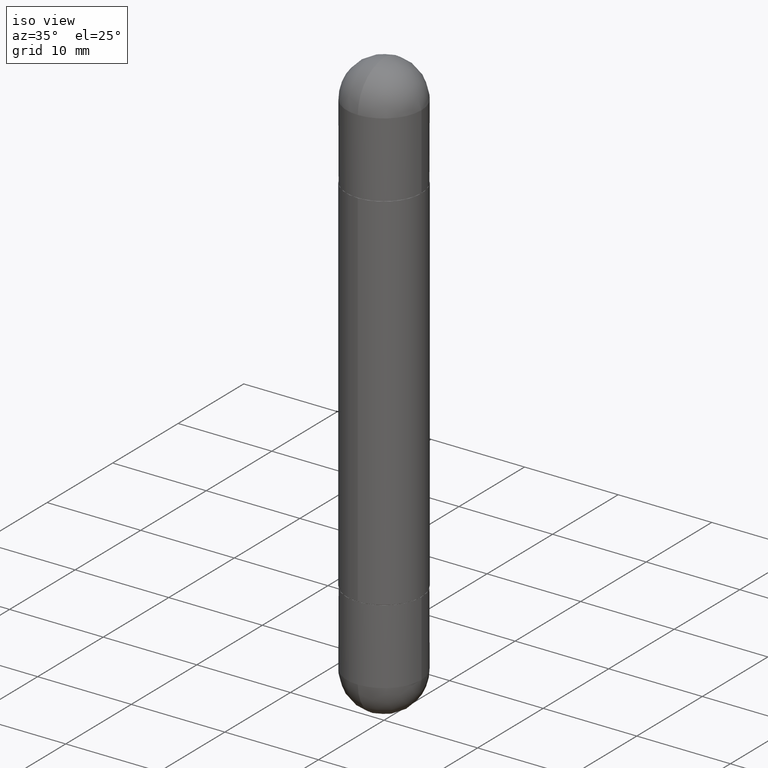
[diagram: clean part render]
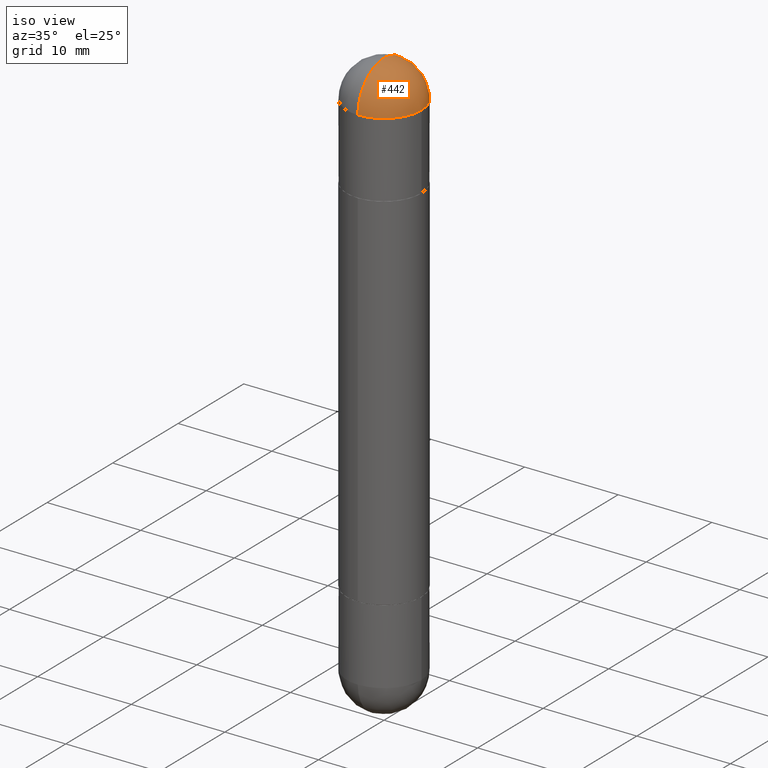
[diagram: same view with one face highlighted and labeled with its STEP entity id]
A machine part, iso view. The second image highlights one B-rep face of the part: STEP entity #442.
In plain terms, the highlighted spherical surface has radius 4.0005 mm.
Its self-contained STEP definition (entity closure, byte-faithful):
#32 = DIRECTION ( 'NONE',  ( -1.000000000000000000, 6.982962677686265922E-15, 4.883557194083112340E-29 ) ) ;
#51 = VERTEX_POINT ( 'NONE', #335 ) ;
#66 = ORIENTED_EDGE ( 'NONE', *, *, #529, .T. ) ;
#95 = EDGE_LOOP ( 'NONE', ( #498, #66, #574, #303 ) ) ;
#208 = AXIS2_PLACEMENT_3D ( 'NONE', #278, #473, #720 ) ;
#250 = CARTESIAN_POINT ( 'NONE',  ( 5.680334943006836279E-29, -8.110012853864858834E-15, -0.1575000000000001676 ) ) ;
#254 = DIRECTION ( 'NONE',  ( 2.445468806185136597E-29, -3.491481338843145583E-15, 1.000000000000000000 ) ) ;
#259 = AXIS2_PLACEMENT_3D ( 'NONE', #750, #755, #636 ) ;
#278 = CARTESIAN_POINT ( 'NONE',  ( 5.349215165092950032E-29, -8.584195222004910708E-15, -0.1574999999999998901 ) ) ;
#303 = ORIENTED_EDGE ( 'NONE', *, *, #673, .T. ) ;
#310 = CIRCLE ( 'NONE', #471, 0.1575000000000001676 ) ;
#335 = CARTESIAN_POINT ( 'NONE',  ( -1.080528434648961545E-15, -0.1575000000000084388, -0.1575000000000007228 ) ) ;
#349 = CARTESIAN_POINT ( 'NONE',  ( 5.349215165092950032E-29, -8.584195222004910708E-15, -0.1574999999999998901 ) ) ;
#362 = CARTESIAN_POINT ( 'NONE',  ( 5.349215165092950032E-29, -8.584195222004910708E-15, -0.1574999999999998901 ) ) ;
#398 = FACE_OUTER_BOUND ( 'NONE', #95, .T. ) ;
#405 = CARTESIAN_POINT ( 'NONE',  ( 0.1575000000000000011, -8.660095738799594725E-15, -0.1575000000000001676 ) ) ;
#407 = EDGE_CURVE ( 'NONE', #599, #651, #413, .T. ) ;
#413 = CIRCLE ( 'NONE', #533, 0.1575000000000001676 ) ;
#442 = ADVANCED_FACE ( 'NONE', ( #398 ), #532, .T. ) ;
#448 = VERTEX_POINT ( 'NONE', #405 ) ;
#471 = AXIS2_PLACEMENT_3D ( 'NONE', #362, #608, #740 ) ;
#473 = DIRECTION ( 'NONE',  ( 1.000000000000000000, -6.982962677686265133E-15, -4.883557194083112901E-29 ) ) ;
#498 = ORIENTED_EDGE ( 'NONE', *, *, #407, .F. ) ;
#529 = EDGE_CURVE ( 'NONE', #599, #51, #310, .T. ) ;
#532 = SPHERICAL_SURFACE ( 'NONE', #208, 0.1575000000000001676 ) ;
#533 = AXIS2_PLACEMENT_3D ( 'NONE', #349, #32, #781 ) ;
#566 = DIRECTION ( 'NONE',  ( 1.000000000000000000, -6.982962677686268288E-15, 0.000000000000000000 ) ) ;
#574 = ORIENTED_EDGE ( 'NONE', *, *, #728, .T. ) ;
#599 = VERTEX_POINT ( 'NONE', #607 ) ;
#607 = CARTESIAN_POINT ( 'NONE',  ( 5.741110936594397103E-29, -9.124459439329419387E-15, 2.731847993664263218E-16 ) ) ;
#608 = DIRECTION ( 'NONE',  ( 1.000000000000000000, -6.860497997771530774E-15, -4.840798879624142912E-29 ) ) ;
#636 = DIRECTION ( 'NONE',  ( 1.000000000000000000, -6.982962677686268288E-15, 0.000000000000000000 ) ) ;
#651 = VERTEX_POINT ( 'NONE', #731 ) ;
#673 = EDGE_CURVE ( 'NONE', #448, #651, #765, .T. ) ;
#695 = CIRCLE ( 'NONE', #259, 0.1575000000000000011 ) ;
#720 = DIRECTION ( 'NONE',  ( 6.982962677686265133E-15, 1.000000000000000000, 3.469013325287949743E-15 ) ) ;
#728 = EDGE_CURVE ( 'NONE', #51, #448, #695, .T. ) ;
#731 = CARTESIAN_POINT ( 'NONE',  ( 1.099816621735642503E-15, 0.1574999999999917577, -0.1574999999999996125 ) ) ;
#735 = AXIS2_PLACEMENT_3D ( 'NONE', #250, #254, #566 ) ;
#740 = DIRECTION ( 'NONE',  ( 6.860497997771529985E-15, 1.000000000000000000, 0.000000000000000000 ) ) ;
#750 = CARTESIAN_POINT ( 'NONE',  ( 5.680334943006836279E-29, -8.110012853864858834E-15, -0.1575000000000001676 ) ) ;
#755 = DIRECTION ( 'NONE',  ( 2.445468806185136597E-29, -3.491481338843145583E-15, 1.000000000000000000 ) ) ;
#765 = CIRCLE ( 'NONE', #735, 0.1575000000000000011 ) ;
#781 = DIRECTION ( 'NONE',  ( -6.982962677686265133E-15, -1.000000000000000000, 0.000000000000000000 ) ) ;